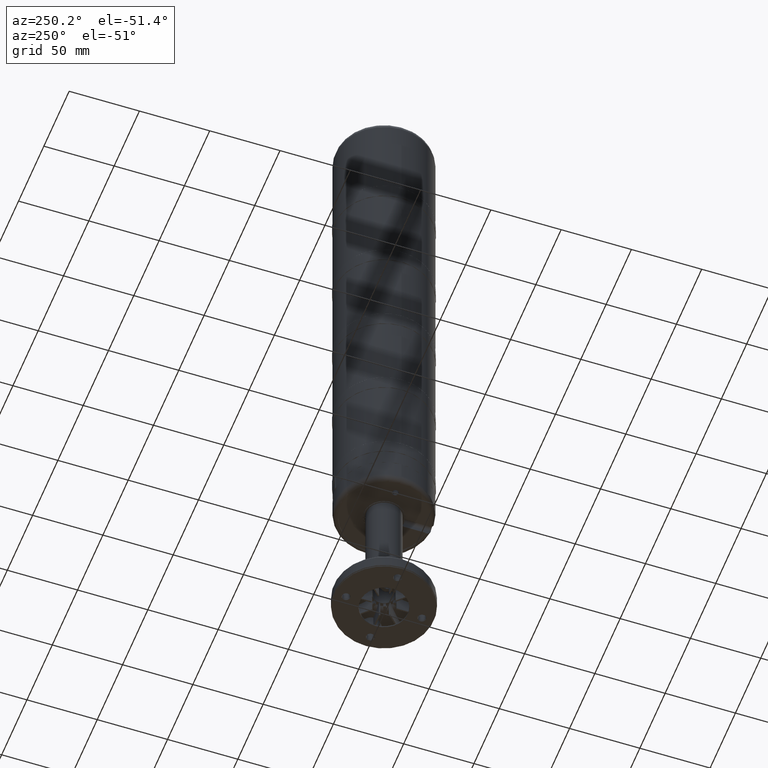
[diagram: clean part render]
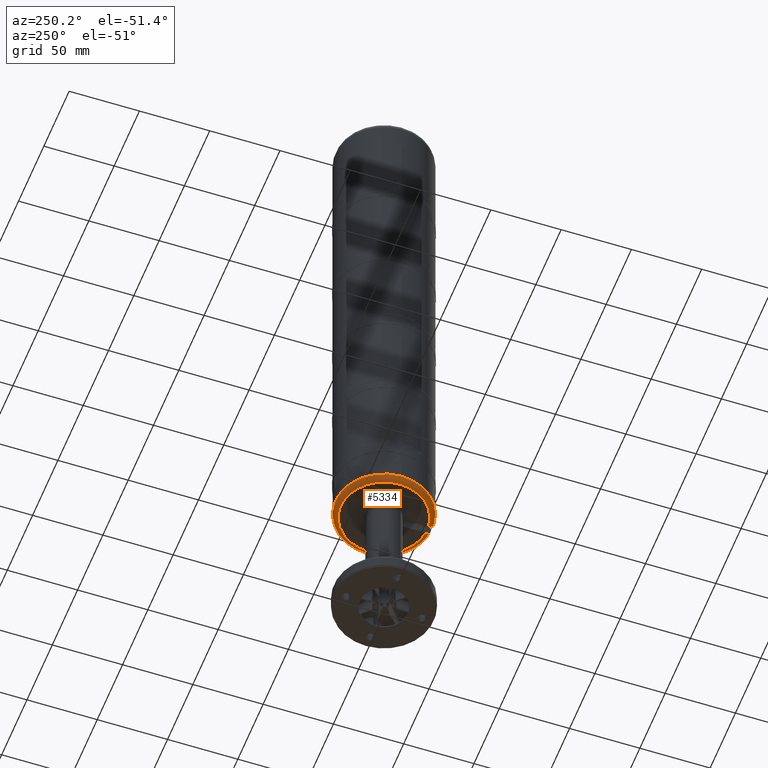
[diagram: same view with one face highlighted and labeled with its STEP entity id]
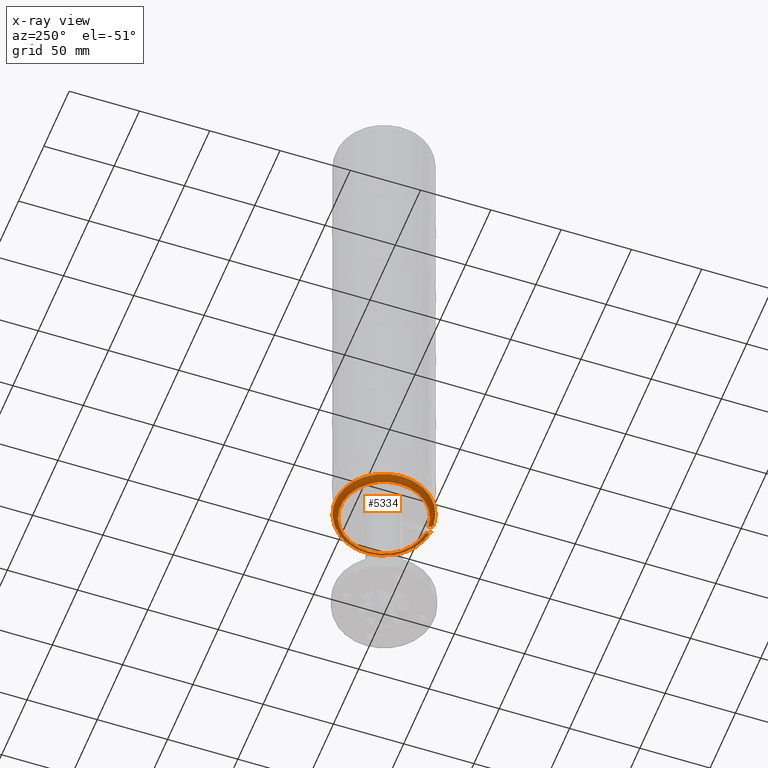
[diagram: x-ray of the same camera — body ghosted, the highlighted face saturated]
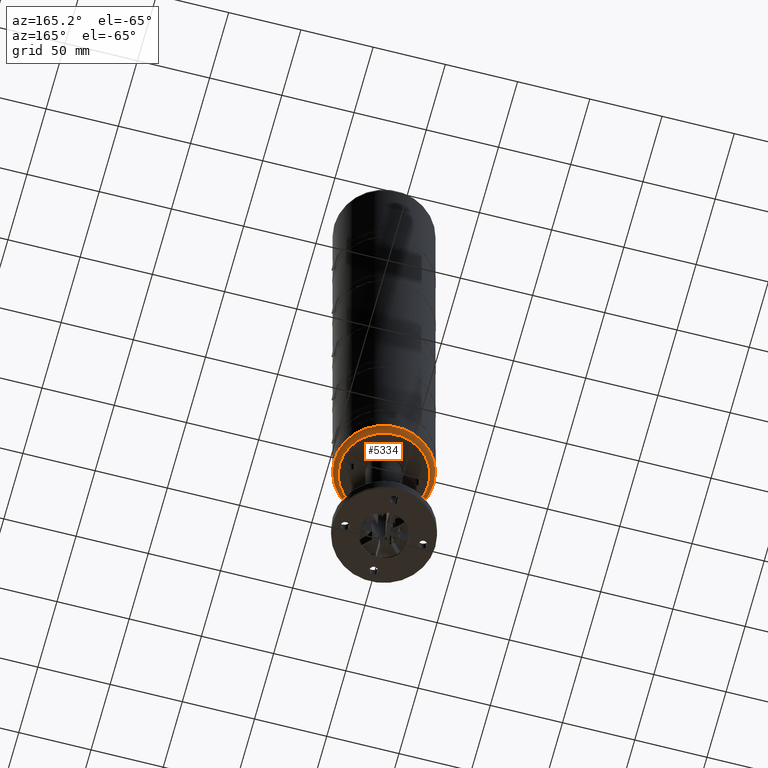
[diagram: same view with one face highlighted and labeled with its STEP entity id]
A machine part, auxiliary view. The second image highlights one B-rep face of the part: STEP entity #5334.
The next image is the same camera in x-ray: the body ghosted, the highlighted face saturated — about 5% of this face is hidden behind the body in this view.
A second angle (auxiliary view) of the same face is appended — the face is thin or edge-on in the first view.
In plain terms, the highlighted toroidal blend (fillet) surface has major radius 30.5 mm and minor (blend) radius 4 mm.
Its self-contained STEP definition (entity closure, byte-faithful):
#51=TOROIDAL_SURFACE('',#21922,30.5,4.);
#182=B_SPLINE_CURVE_WITH_KNOTS('',3,(#34371,#34372,#34373,#34374,#34375,
#34376,#34377),.UNSPECIFIED.,.F.,.F.,(4,3,4),(0.,0.83432452491869,1.),.UNSPECIFIED.);
#183=B_SPLINE_CURVE_WITH_KNOTS('',3,(#34382,#34383,#34384,#34385,#34386,
#34387,#34388),.UNSPECIFIED.,.F.,.F.,(4,3,4),(0.,0.834331411694279,1.),.UNSPECIFIED.);
#184=B_SPLINE_CURVE_WITH_KNOTS('',3,(#34390,#34391,#34392,#34393,#34394,
#34395,#34396,#34397,#34398,#34399,#34400,#34401,#34402,#34403,#34404,#34405),
 .UNSPECIFIED.,.F.,.F.,(4,3,3,3,3,4),(0.,0.187511111334021,0.45823606734341,
0.62722254449507,0.895053480604784,1.),.UNSPECIFIED.);
#185=B_SPLINE_CURVE_WITH_KNOTS('',3,(#34409,#34410,#34411,#34412,#34413,
#34414,#34415,#34416,#34417,#34418,#34419,#34420,#34421,#34422,#34423,#34424),
 .UNSPECIFIED.,.F.,.F.,(4,3,3,3,3,4),(0.,0.207956514714186,0.372194158853245,
0.641591871620174,0.910934396307859,1.),.UNSPECIFIED.);
#5334=ADVANCED_FACE('',(#6915),#51,.T.);
#6915=FACE_OUTER_BOUND('',#8292,.T.);
#8292=EDGE_LOOP('',(#13032,#13033,#13034,#13035,#13036,#13037));
#13032=ORIENTED_EDGE('',*,*,#18302,.F.);
#13033=ORIENTED_EDGE('',*,*,#18303,.F.);
#13034=ORIENTED_EDGE('',*,*,#18304,.F.);
#13035=ORIENTED_EDGE('',*,*,#18305,.F.);
#13036=ORIENTED_EDGE('',*,*,#18306,.T.);
#13037=ORIENTED_EDGE('',*,*,#18307,.F.);
#15705=VERTEX_POINT('',#34378);
#15706=VERTEX_POINT('',#34379);
#15707=VERTEX_POINT('',#34381);
#15708=VERTEX_POINT('',#34389);
#15709=VERTEX_POINT('',#34406);
#15710=VERTEX_POINT('',#34408);
#18302=EDGE_CURVE('',#15705,#15706,#182,.T.);
#18303=EDGE_CURVE('',#15707,#15705,#19753,.T.);
#18304=EDGE_CURVE('',#15708,#15707,#183,.T.);
#18305=EDGE_CURVE('',#15709,#15708,#184,.T.);
#18306=EDGE_CURVE('',#15709,#15710,#19754,.T.);
#18307=EDGE_CURVE('',#15706,#15710,#185,.T.);
#19753=CIRCLE('',#21920,34.5);
#19754=CIRCLE('',#21921,30.75);
#21920=AXIS2_PLACEMENT_3D('',#34380,#27376,#27377);
#21921=AXIS2_PLACEMENT_3D('',#34407,#27378,#27379);
#21922=AXIS2_PLACEMENT_3D('',#34425,#27380,#27381);
#27376=DIRECTION('',(0.,0.,1.));
#27377=DIRECTION('',(1.,0.,0.));
#27378=DIRECTION('',(0.,0.,1.));
#27379=DIRECTION('',(1.,0.,0.));
#27380=DIRECTION('',(0.,0.,1.));
#27381=DIRECTION('',(1.,0.,0.));
#34371=CARTESIAN_POINT('',(-2.82842712474619,-34.3838624939084,42.75));
#34372=CARTESIAN_POINT('',(-2.92341903573502,-34.376048430037,42.4813223023277));
#34373=CARTESIAN_POINT('',(-2.97977963023595,-34.3425501530451,42.1955259068872));
#34374=CARTESIAN_POINT('',(-2.99532432329273,-34.281786269881,41.9174281884598));
#34375=CARTESIAN_POINT('',(-2.99845410685244,-34.2695520107769,41.8614357244114));
#34376=CARTESIAN_POINT('',(-3.,-34.2562175368238,41.8055628769922));
#34377=CARTESIAN_POINT('',(-3.,-34.2418163086985,41.75));
#34378=CARTESIAN_POINT('',(-2.82842712474619,-34.3838624939084,42.75));
#34379=CARTESIAN_POINT('',(-3.,-34.2418163086985,41.75));
#34380=CARTESIAN_POINT('',(0.,0.,42.75));
#34381=CARTESIAN_POINT('',(2.82842712474619,-34.3838624939084,42.75));
#34382=CARTESIAN_POINT('',(3.,-34.2418163086985,41.75));
#34383=CARTESIAN_POINT('',(3.,-34.313344083807,42.0259687531727));
#34384=CARTESIAN_POINT('',(2.96040472661166,-34.3582416136461,42.31299115834));
#34385=CARTESIAN_POINT('',(2.88109397034676,-34.3761241645282,42.5862401174493));
#34386=CARTESIAN_POINT('',(2.86512591898697,-34.3797245524753,42.6412547663891));
#34387=CARTESIAN_POINT('',(2.84755266865193,-34.3822892207728,42.6959047928415));
#34388=CARTESIAN_POINT('',(2.82842712474619,-34.3838624939084,42.75));
#34389=CARTESIAN_POINT('',(3.,-34.2418163086985,41.75));
#34390=CARTESIAN_POINT('',(3.,-30.6033086446547,38.7578201443322));
#34391=CARTESIAN_POINT('',(3.,-30.9160322213302,38.7773102321764));
#34392=CARTESIAN_POINT('',(3.,-31.2285607740822,38.8338239469614));
#34393=CARTESIAN_POINT('',(3.,-31.5282863489941,38.9251501681503));
#34394=CARTESIAN_POINT('',(3.,-31.9604183612122,39.0568205594482));
#34395=CARTESIAN_POINT('',(3.,-32.3758040423755,39.2650563641766));
#34396=CARTESIAN_POINT('',(3.,-32.7396834378217,39.5327632066329));
#34397=CARTESIAN_POINT('',(3.,-32.9688066514593,39.7013296405228));
#34398=CARTESIAN_POINT('',(3.,-33.1810987577108,39.8954762545171));
#34399=CARTESIAN_POINT('',(3.,-33.3693533205733,40.1087186265343));
#34400=CARTESIAN_POINT('',(3.,-33.6651838296037,40.4438159463628));
#34401=CARTESIAN_POINT('',(3.,-33.9073837389878,40.8344982253302));
#34402=CARTESIAN_POINT('',(3.,-34.0757226420488,41.2485850731601));
#34403=CARTESIAN_POINT('',(3.,-34.142030396713,41.4116915721115));
#34404=CARTESIAN_POINT('',(3.,-34.1976409300716,41.5795623743068));
#34405=CARTESIAN_POINT('',(3.,-34.2418163086985,41.75));
#34406=CARTESIAN_POINT('',(3.,-30.6033086446547,38.7578201443322));
#34407=CARTESIAN_POINT('',(0.,0.,38.7578201443322));
#34408=CARTESIAN_POINT('',(-3.,-30.6033086446547,38.7578201443322));
#34409=CARTESIAN_POINT('',(-3.,-34.2418163086985,41.75));
#34410=CARTESIAN_POINT('',(-3.,-34.1546796501409,41.413808989147));
#34411=CARTESIAN_POINT('',(-3.,-34.0221333048378,41.0863760520351));
#34412=CARTESIAN_POINT('',(-3.,-33.8509458699468,40.7841972056901));
#34413=CARTESIAN_POINT('',(-3.,-33.7146432495125,40.5435967864896));
#34414=CARTESIAN_POINT('',(-3.,-33.5523637045218,40.3160207380134));
#34415=CARTESIAN_POINT('',(-3.,-33.3693533205733,40.1087186265343));
#34416=CARTESIAN_POINT('',(-3.,-33.0718407266216,39.7717159516743));
#34417=CARTESIAN_POINT('',(-3.,-32.7118643117858,39.4816059281976));
#34418=CARTESIAN_POINT('',(-3.,-32.3194905401192,39.2622264174617));
#34419=CARTESIAN_POINT('',(-3.,-31.9271648804692,39.0428738065632));
#34420=CARTESIAN_POINT('',(-3.,-31.4916644071967,38.888161806577));
#34421=CARTESIAN_POINT('',(-3.,-31.0489273077596,38.8105805465344));
#34422=CARTESIAN_POINT('',(-3.,-30.9015951357696,38.7847633842447));
#34423=CARTESIAN_POINT('',(-3.,-30.7525960443755,38.7671242862377));
#34424=CARTESIAN_POINT('',(-3.,-30.6033086446547,38.7578201443322));
#34425=CARTESIAN_POINT('',(0.,0.,42.75));